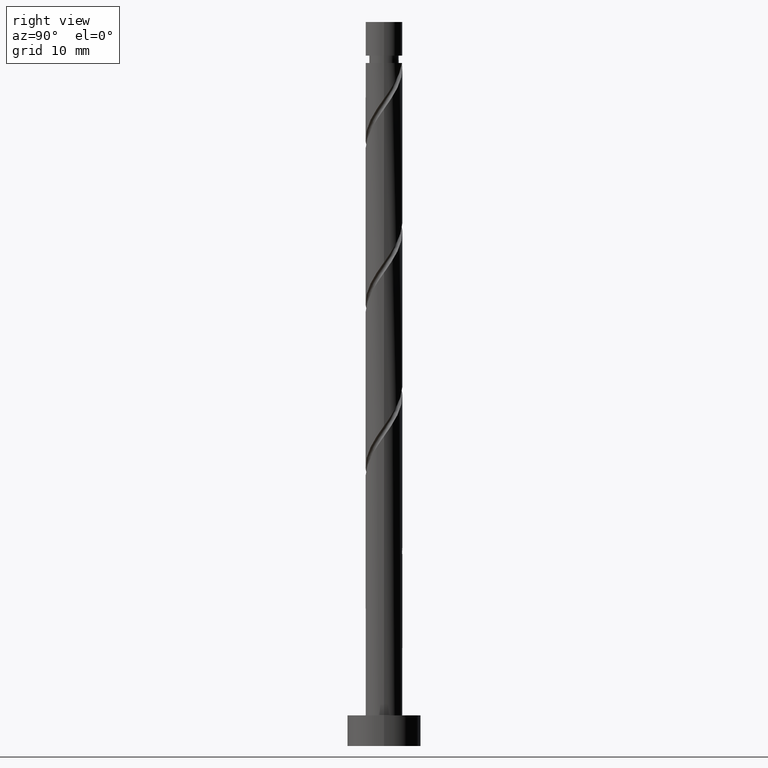
[diagram: clean part render]
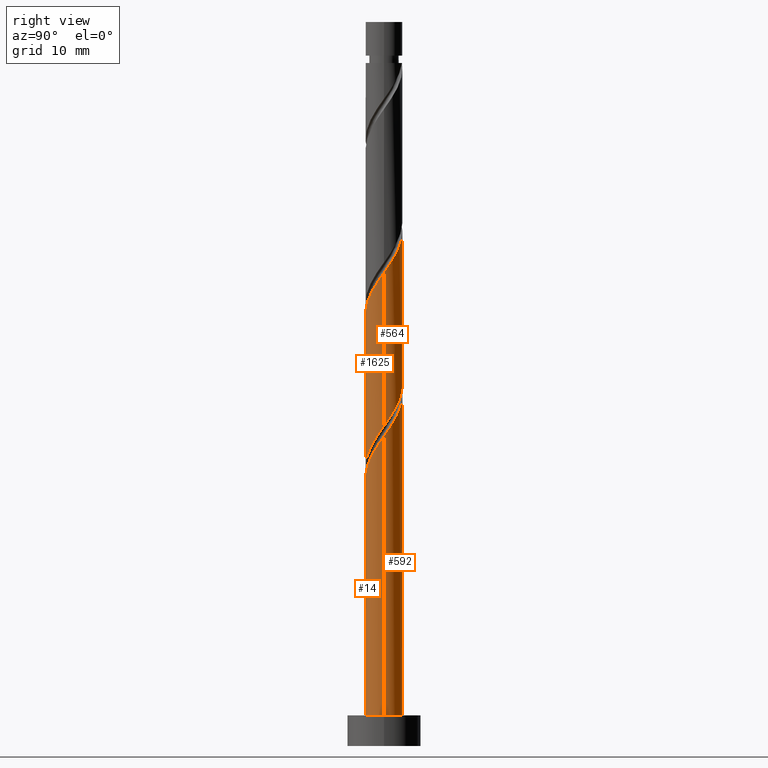
[diagram: same view with one multi-face feature highlighted, each face labeled with its STEP entity id]
A machine part, right view. The highlighted faces form ONE feature: a constant-radius fillet chain: 4 tangent blend faces with common blend radius 3 mm. The faces share edges in the B-rep.
Their STEP definitions:
[1] entity #564 (Cylinder):
#2 = CYLINDRICAL_SURFACE ( 'NONE', #325, 3.000000000000000444 ) ;
#3 = CARTESIAN_POINT ( 'NONE',  ( -3.000000000000000888, 2.243523105524484873E-15, 65.50417177779928579 ) ) ;
#12 = CARTESIAN_POINT ( 'NONE',  ( 1.489272404272453221, 2.639719205955345149, 81.62441426819538037 ) ) ;
#15 = CARTESIAN_POINT ( 'NONE',  ( 3.000000000000000888, -2.871709575071340591E-15, 52.17083844446595009 ) ) ;
#17 = CARTESIAN_POINT ( 'NONE',  ( -2.999999999999999112, 0.08632657957147266137, 65.38207377308104640 ) ) ;
#25 = CARTESIAN_POINT ( 'NONE',  ( 2.922317697815699944, 0.6782766935647610573, 53.13956578334689596 ) ) ;
#30 = CARTESIAN_POINT ( 'NONE',  ( 1.830956826603534982, 2.376467357047839624, 81.01835366213481393 ) ) ;
#143 = CARTESIAN_POINT ( 'NONE',  ( -0.2554836442707042465, 2.989101555235311292, 59.20017184395295118 ) ) ;
#163 = CARTESIAN_POINT ( 'NONE',  ( -3.000000000000005329, 0.3435867821553680868, 89.98596953289286660 ) ) ;
#165 = VERTEX_POINT ( 'NONE', #3 ) ;
#172 = ORIENTED_EDGE ( 'NONE', *, *, #1236, .F. ) ;
#198 = EDGE_CURVE ( 'NONE', #457, #1049, #836, .T. ) ;
#257 = CARTESIAN_POINT ( 'NONE',  ( 0.000000000000000000, 0.000000000000000000, 118.0000000000000142 ) ) ;
#258 = CARTESIAN_POINT ( 'NONE',  ( 2.995035924847414321, 0.1725103152667142592, 77.38199002577111685 ) ) ;
#268 = CARTESIAN_POINT ( 'NONE',  ( -2.172641248934613412, 2.113215508140330545, 62.23047487425600366 ) ) ;
#275 = CARTESIAN_POINT ( 'NONE',  ( 2.091706021272608851, 2.150526893710449361, 55.56380820758930383 ) ) ;
#286 = CARTESIAN_POINT ( 'NONE',  ( -2.825114153412475737, 1.009321564313631292, 64.04865669243780246 ) ) ;
#292 = CARTESIAN_POINT ( 'NONE',  ( -2.824796231958410342, 1.098442546668023878, 88.89714154092261822 ) ) ;
#304 = EDGE_CURVE ( 'NONE', #165, #1235, #322, .T. ) ;
#322 =( BOUNDED_CURVE ( )  B_SPLINE_CURVE ( 2, ( #517, #17, #1033, #927, #286, #1304, #1541, #268, #1550, #1429, #1411, #934, #143, #388, #665, #773, #1181, #810, #275, #380, #1576, #784, #25, #919, #405 ),
 .UNSPECIFIED., .F., .T. ) 
 B_SPLINE_CURVE_WITH_KNOTS ( ( 3, 2, 2, 2, 2, 2, 2, 2, 2, 2, 2, 2, 3 ),
 ( 0.6795252162417514397, 0.6818181818181817677, 0.6931818181818182323, 0.7045454545454545858, 0.7159090909090909394, 0.7272727272727272929, 0.7386363636363636465, 0.7500000000000000000, 0.7613636363636363535, 0.7727272727272727071, 0.7840909090909090606, 0.7954545454545454142, 0.8045252162417513286 ),
 .UNSPECIFIED. ) 
 CURVE ( )  GEOMETRIC_REPRESENTATION_ITEM ( )  RATIONAL_B_SPLINE_CURVE ( ( 0.9061101570135513539, 0.9072237824201334622, 0.9090909090909108370, 0.8998376744372130753, 0.9090909090909108370, 0.8998376744372130753, 0.9090909090909108370, 0.8998376744372130753, 0.9090909090909108370, 0.8998376744372130753, 0.9090909090909108370, 0.8998376744372130753, 0.9090909090909108370, 0.8998376744372130753, 0.9090909090909108370, 0.8998376744372130753, 0.9090909090909108370, 0.8998376744372130753, 0.9090909090909108370, 0.8998376744372130753, 0.9090909090909108370, 0.8998376744372130753, 0.9090909090909108370, 0.9017048011079905612, 0.9061101570135511318 ) ) 
 REPRESENTATION_ITEM ( '' )  );
#325 = AXIS2_PLACEMENT_3D ( 'NONE', #257, #384, #923 ) ;
#378 = CARTESIAN_POINT ( 'NONE',  ( 1.087261985366306805, 2.796043879336900240, 82.23047487425597524 ) ) ;
#380 = CARTESIAN_POINT ( 'NONE',  ( 2.400905109240607072, 1.849784970432860831, 54.95774760152871607 ) ) ;
#384 = DIRECTION ( 'NONE',  ( -0.000000000000000000, -0.000000000000000000, -1.000000000000000000 ) ) ;
#388 = CARTESIAN_POINT ( 'NONE',  ( 0.1742842779187503133, 3.025834557752173026, 58.59411123789234921 ) ) ;
#405 = CARTESIAN_POINT ( 'NONE',  ( 3.000000000000000888, -2.871709575071340591E-15, 52.17083844446595009 ) ) ;
#410 = CARTESIAN_POINT ( 'NONE',  ( -3.000000000000005773, -1.465768428942654663E-15, 90.47192948586418026 ) ) ;
#412 = DIRECTION ( 'NONE',  ( -0.000000000000000000, -0.000000000000000000, -1.000000000000000000 ) ) ;
#421 = ORIENTED_EDGE ( 'NONE', *, *, #1457, .T. ) ;
#457 = VERTEX_POINT ( 'NONE', #488 ) ;
#468 = ORIENTED_EDGE ( 'NONE', *, *, #198, .F. ) ;
#488 = CARTESIAN_POINT ( 'NONE',  ( 3.000000000000005773, 1.376027504721675331E-15, 77.13859615253085167 ) ) ;
#515 = CARTESIAN_POINT ( 'NONE',  ( 2.172641248934617408, 2.113215508140330989, 80.41229305607413380 ) ) ;
#517 = CARTESIAN_POINT ( 'NONE',  ( -3.000000000000000888, 2.243523105524484873E-15, 65.50417177779928579 ) ) ;
#533 = CARTESIAN_POINT ( 'NONE',  ( 2.426318434868872220, 1.764363582886331105, 79.80623245001356736 ) ) ;
#543 = CARTESIAN_POINT ( 'NONE',  ( 0.2554836442707054123, 2.989101555235317065, 83.44259608637720760 ) ) ;
#553 = CARTESIAN_POINT ( 'NONE',  ( -2.091706021272611959, 2.150526893710452470, 87.07895972274081942 ) ) ;
#564 = ADVANCED_FACE ( 'NONE', ( #1186 ), #2, .T. ) ;
#605 = EDGE_LOOP ( 'NONE', ( #468, #421, #1088, #172 ) ) ;
#622 = CARTESIAN_POINT ( 'NONE',  ( 3.000000000000000444, 3.673940397442060361E-16, 118.0000000000000142 ) ) ;
#639 = LINE ( 'NONE', #622, #1434 ) ;
#654 = CARTESIAN_POINT ( 'NONE',  ( 2.679995620803127476, 1.415511657632331444, 79.20017184395294407 ) ) ;
#662 = CARTESIAN_POINT ( 'NONE',  ( 3.000000000000006217, 1.376027504721675331E-15, 77.13859615253085167 ) ) ;
#665 = CARTESIAN_POINT ( 'NONE',  ( 0.5969924622639726230, 2.939999999999999503, 57.98805063183174013 ) ) ;
#683 = CARTESIAN_POINT ( 'NONE',  ( -1.019700646609194683, 2.854165442247831752, 85.26077790455902061 ) ) ;
#773 = CARTESIAN_POINT ( 'NONE',  ( 1.019700646609194239, 2.854165442247829532, 57.38199002577113816 ) ) ;
#784 = CARTESIAN_POINT ( 'NONE',  ( 2.824796231958409454, 1.098442546668020103, 53.74562638940749792 ) ) ;
#810 = CARTESIAN_POINT ( 'NONE',  ( 1.782506933304612184, 2.451268816988038779, 56.16986881364992712 ) ) ;
#814 = CARTESIAN_POINT ( 'NONE',  ( -2.400905109240610180, 1.849784970432863274, 87.68502032880142849 ) ) ;
#836 =( BOUNDED_CURVE ( )  B_SPLINE_CURVE ( 2, ( #662, #1436, #258, #1309, #1179, #654, #533, #515, #30, #12, #378, #914, #543, #940, #1417, #683, #1197, #1170, #553, #814, #1072, #292, #1325, #163, #410 ),
 .UNSPECIFIED., .F., .T. ) 
 B_SPLINE_CURVE_WITH_KNOTS ( ( 3, 2, 2, 2, 2, 2, 2, 2, 2, 2, 2, 2, 3 ),
 ( 0.4295252162417512731, 0.4318181818181817677, 0.4431818181818182323, 0.4545454545454545858, 0.4659090909090909394, 0.4772727272727272929, 0.4886363636363636465, 0.5000000000000000000, 0.5113636363636363535, 0.5227272727272727071, 0.5340909090909091717, 0.5454545454545454142, 0.5545252162417514397 ),
 .UNSPECIFIED. ) 
 CURVE ( )  GEOMETRIC_REPRESENTATION_ITEM ( )  RATIONAL_B_SPLINE_CURVE ( ( 0.9061101570135569050, 0.9072237824201390133, 0.9090909090909164991, 0.8998376744372190705, 0.9090909090909164991, 0.8998376744372190705, 0.9090909090909164991, 0.8998376744372190705, 0.9090909090909164991, 0.8998376744372190705, 0.9090909090909164991, 0.8998376744372190705, 0.9090909090909164991, 0.8998376744372190705, 0.9090909090909164991, 0.8998376744372190705, 0.9090909090909164991, 0.8998376744372190705, 0.9090909090909164991, 0.8998376744372190705, 0.9090909090909164991, 0.8998376744372190705, 0.9090909090909164991, 0.9017048011079964454, 0.9061101570135570160 ) ) 
 REPRESENTATION_ITEM ( '' )  );
#914 = CARTESIAN_POINT ( 'NONE',  ( 0.6852515664601606105, 2.952368552718455774, 82.83653548031655589 ) ) ;
#919 = CARTESIAN_POINT ( 'NONE',  ( 3.000000000000000888, 0.3435867821553666435, 52.65679839743727797 ) ) ;
#923 = DIRECTION ( 'NONE',  ( -1.000000000000000000, 0.000000000000000000, 0.000000000000000000 ) ) ;
#927 = CARTESIAN_POINT ( 'NONE',  ( -2.970232686021826218, 0.6031314709949326947, 64.65471729849841154 ) ) ;
#934 = CARTESIAN_POINT ( 'NONE',  ( -0.6852515664601593892, 2.952368552718452666, 59.80623245001356736 ) ) ;
#940 = CARTESIAN_POINT ( 'NONE',  ( -0.1742842779187495639, 3.025834557752176579, 84.04865669243781667 ) ) ;
#1033 = CARTESIAN_POINT ( 'NONE',  ( -2.995035924847409881, 0.1725103152667151196, 65.26077790455900640 ) ) ;
#1049 = VERTEX_POINT ( 'NONE', #1219 ) ;
#1072 = CARTESIAN_POINT ( 'NONE',  ( -2.612850670599510483, 1.474113758550443576, 88.29108093486205178 ) ) ;
#1075 = LINE ( 'NONE', #1302, #1465 ) ;
#1088 = ORIENTED_EDGE ( 'NONE', *, *, #304, .F. ) ;
#1170 = CARTESIAN_POINT ( 'NONE',  ( -1.782506933304613961, 2.451268816988041888, 86.47289911668021034 ) ) ;
#1179 = CARTESIAN_POINT ( 'NONE',  ( 2.825114153412478846, 1.009321564313631958, 78.59411123789236342 ) ) ;
#1181 = CARTESIAN_POINT ( 'NONE',  ( 1.401103789956902990, 2.652717129617932823, 56.77592941971052909 ) ) ;
#1186 = FACE_OUTER_BOUND ( 'NONE', #605, .T. ) ;
#1197 = CARTESIAN_POINT ( 'NONE',  ( -1.401103789956904544, 2.652717129617936820, 85.86683851061961548 ) ) ;
#1219 = CARTESIAN_POINT ( 'NONE',  ( -3.000000000000005773, -1.465768428942654465E-15, 90.47192948586418026 ) ) ;
#1235 = VERTEX_POINT ( 'NONE', #15 ) ;
#1236 = EDGE_CURVE ( 'NONE', #1049, #165, #1075, .T. ) ;
#1302 = CARTESIAN_POINT ( 'NONE',  ( -3.000000000000000444, 0.000000000000000000, 118.0000000000000142 ) ) ;
#1304 = CARTESIAN_POINT ( 'NONE',  ( -2.679995620803124368, 1.415511657632331444, 63.44259608637720049 ) ) ;
#1309 = CARTESIAN_POINT ( 'NONE',  ( 2.970232686021831547, 0.6031314709949322506, 77.98805063183172592 ) ) ;
#1325 = CARTESIAN_POINT ( 'NONE',  ( -2.922317697815704829, 0.6782766935647640549, 89.50320214698326993 ) ) ;
#1411 = CARTESIAN_POINT ( 'NONE',  ( -1.087261985366304584, 2.796043879336897575, 60.41229305607415512 ) ) ;
#1417 = CARTESIAN_POINT ( 'NONE',  ( -0.5969924622639717349, 2.940000000000005276, 84.65471729849842575 ) ) ;
#1429 = CARTESIAN_POINT ( 'NONE',  ( -1.489272404272451888, 2.639719205955342041, 61.01835366213477130 ) ) ;
#1434 = VECTOR ( 'NONE', #1643, 1000.000000000000000 ) ;
#1436 = CARTESIAN_POINT ( 'NONE',  ( 3.000000000000004885, 0.08632657957146550043, 77.26069415724906264 ) ) ;
#1457 = EDGE_CURVE ( 'NONE', #457, #1235, #639, .T. ) ;
#1465 = VECTOR ( 'NONE', #412, 1000.000000000000000 ) ;
#1541 = CARTESIAN_POINT ( 'NONE',  ( -2.426318434868868668, 1.764363582886330217, 62.83653548031659142 ) ) ;
#1550 = CARTESIAN_POINT ( 'NONE',  ( -1.830956826603531873, 2.376467357047835627, 61.62441426819536616 ) ) ;
#1576 = CARTESIAN_POINT ( 'NONE',  ( 2.612850670599507374, 1.474113758550441355, 54.35168699546809989 ) ) ;
#1643 = DIRECTION ( 'NONE',  ( -0.000000000000000000, -0.000000000000000000, -1.000000000000000000 ) ) ;
[2] entity #1625 (Cylinder):
#5 = CARTESIAN_POINT ( 'NONE',  ( -0.1742842779187510904, -3.025834557752173470, 45.26077790455902061 ) ) ;
#15 = CARTESIAN_POINT ( 'NONE',  ( 3.000000000000000888, -2.871709575071340591E-15, 52.17083844446595009 ) ) ;
#87 = CARTESIAN_POINT ( 'NONE',  ( 2.824796231958411674, -1.098442546668023212, 75.56380820758931804 ) ) ;
#115 = CARTESIAN_POINT ( 'NONE',  ( 0.5969924622639720679, -2.940000000000005276, 71.32138396516508294 ) ) ;
#150 = CARTESIAN_POINT ( 'NONE',  ( 0.6852515664601597223, -2.952368552718452221, 46.47289911668021745 ) ) ;
#167 = DIRECTION ( 'NONE',  ( -0.000000000000000000, -0.000000000000000000, -1.000000000000000000 ) ) ;
#188 = VECTOR ( 'NONE', #1385, 1000.000000000000000 ) ;
#200 = EDGE_LOOP ( 'NONE', ( #1606, #974, #990, #1638 ) ) ;
#207 =( BOUNDED_CURVE ( )  B_SPLINE_CURVE ( 2, ( #340, #638, #872, #1379, #221, #746, #1250, #1662, #793, #372, #253, #150, #1447, #5, #1042, #943, #1164, #510, #907, #1311, #1558, #1319, #1189, #546, #685 ),
 .UNSPECIFIED., .F., .T. ) 
 B_SPLINE_CURVE_WITH_KNOTS ( ( 3, 2, 2, 2, 2, 2, 2, 2, 2, 2, 2, 2, 3 ),
 ( 0.8045252162417513286, 0.8068181818181817677, 0.8181818181818182323, 0.8295454545454545858, 0.8409090909090909394, 0.8522727272727272929, 0.8636363636363636465, 0.8750000000000000000, 0.8863636363636363535, 0.8977272727272727071, 0.9090909090909090606, 0.9204545454545454142, 0.9295252162417513286 ),
 .UNSPECIFIED. ) 
 CURVE ( )  GEOMETRIC_REPRESENTATION_ITEM ( )  RATIONAL_B_SPLINE_CURVE ( ( 0.9061101570135511318, 0.9072237824201333511, 0.9090909090909108370, 0.8998376744372130753, 0.9090909090909108370, 0.8998376744372130753, 0.9090909090909108370, 0.8998376744372130753, 0.9090909090909108370, 0.8998376744372130753, 0.9090909090909108370, 0.8998376744372130753, 0.9090909090909108370, 0.8998376744372130753, 0.9090909090909108370, 0.8998376744372130753, 0.9090909090909108370, 0.8998376744372130753, 0.9090909090909108370, 0.8998376744372130753, 0.9090909090909108370, 0.8998376744372130753, 0.9090909090909108370, 0.9017048011079905612, 0.9061101570135511318 ) ) 
 REPRESENTATION_ITEM ( '' )  );
#221 = CARTESIAN_POINT ( 'NONE',  ( 2.825114153412475737, -1.009321564313631292, 50.71532335910445966 ) ) ;
#225 = EDGE_CURVE ( 'NONE', #1128, #457, #1295, .T. ) ;
#253 = CARTESIAN_POINT ( 'NONE',  ( 1.087261985366304584, -2.796043879336897575, 47.07895972274083363 ) ) ;
#281 = EDGE_CURVE ( 'NONE', #1235, #725, #207, .T. ) ;
#288 = DIRECTION ( 'NONE',  ( -1.000000000000000000, 0.000000000000000000, 0.000000000000000000 ) ) ;
#332 = CARTESIAN_POINT ( 'NONE',  ( -2.426318434868872220, -1.764363582886332660, 66.47289911668022455 ) ) ;
#340 = CARTESIAN_POINT ( 'NONE',  ( 3.000000000000000888, -2.871709575071340591E-15, 52.17083844446595009 ) ) ;
#365 = CARTESIAN_POINT ( 'NONE',  ( -0.6852515664601603884, -2.952368552718455774, 69.50320214698322729 ) ) ;
#372 = CARTESIAN_POINT ( 'NONE',  ( 1.489272404272451222, -2.639719205955342929, 47.68502032880144270 ) ) ;
#377 = CARTESIAN_POINT ( 'NONE',  ( -3.000000000000000888, 2.243523105524484873E-15, 38.83750511113262149 ) ) ;
#457 = VERTEX_POINT ( 'NONE', #488 ) ;
#459 = CARTESIAN_POINT ( 'NONE',  ( 2.922317697815704829, -0.6782766935647637219, 76.16986881364994133 ) ) ;
#470 = CARTESIAN_POINT ( 'NONE',  ( -1.087261985366307693, -2.796043879336900240, 68.89714154092261822 ) ) ;
#488 = CARTESIAN_POINT ( 'NONE',  ( 3.000000000000005773, 1.376027504721675331E-15, 77.13859615253085167 ) ) ;
#510 = CARTESIAN_POINT ( 'NONE',  ( -1.782506933304611962, -2.451268816988039223, 42.83653548031659142 ) ) ;
#546 = CARTESIAN_POINT ( 'NONE',  ( -3.000000000000000444, -0.3435867821553678092, 39.32346506410392095 ) ) ;
#594 = LINE ( 'NONE', #1143, #188 ) ;
#607 = CARTESIAN_POINT ( 'NONE',  ( 3.000000000000006217, 1.376027504721675331E-15, 77.13859615253085167 ) ) ;
#621 = CARTESIAN_POINT ( 'NONE',  ( -2.172641248934616520, -2.113215508140332766, 67.07895972274083363 ) ) ;
#622 = CARTESIAN_POINT ( 'NONE',  ( 3.000000000000000444, 3.673940397442060361E-16, 118.0000000000000142 ) ) ;
#638 = CARTESIAN_POINT ( 'NONE',  ( 3.000000000000000000, -0.08632657957146896988, 52.04874043974773201 ) ) ;
#639 = LINE ( 'NONE', #622, #1434 ) ;
#685 = CARTESIAN_POINT ( 'NONE',  ( -3.000000000000000888, 2.243523105524484873E-15, 38.83750511113262149 ) ) ;
#725 = VERTEX_POINT ( 'NONE', #377 ) ;
#734 = CARTESIAN_POINT ( 'NONE',  ( 1.401103789956903656, -2.652717129617937264, 72.53350517728630109 ) ) ;
#746 = CARTESIAN_POINT ( 'NONE',  ( 2.679995620803124368, -1.415511657632331222, 50.10926275304385769 ) ) ;
#793 = CARTESIAN_POINT ( 'NONE',  ( 1.830956826603531873, -2.376467357047836071, 48.29108093486203046 ) ) ;
#803 = FACE_OUTER_BOUND ( 'NONE', #200, .T. ) ;
#872 = CARTESIAN_POINT ( 'NONE',  ( 2.995035924847409881, -0.1725103152667154527, 51.92744457122566359 ) ) ;
#880 = CARTESIAN_POINT ( 'NONE',  ( -2.825114153412478846, -1.009321564313632402, 65.26077790455902061 ) ) ;
#889 = CARTESIAN_POINT ( 'NONE',  ( 2.091706021272611959, -2.150526893710452470, 73.74562638940747661 ) ) ;
#907 = CARTESIAN_POINT ( 'NONE',  ( -2.091706021272610183, -2.150526893710449361, 42.23047487425597524 ) ) ;
#943 = CARTESIAN_POINT ( 'NONE',  ( -1.019700646609193795, -2.854165442247829532, 44.04865669243781667 ) ) ;
#974 = ORIENTED_EDGE ( 'NONE', *, *, #225, .F. ) ;
#990 = ORIENTED_EDGE ( 'NONE', *, *, #1195, .T. ) ;
#1011 = CARTESIAN_POINT ( 'NONE',  ( -2.679995620803127476, -1.415511657632332110, 65.86683851061961548 ) ) ;
#1018 = CARTESIAN_POINT ( 'NONE',  ( 0.1742842779187500080, -3.025834557752176579, 70.71532335910447387 ) ) ;
#1042 = CARTESIAN_POINT ( 'NONE',  ( -0.5969924622639721790, -2.939999999999999503, 44.65471729849839022 ) ) ;
#1128 = VERTEX_POINT ( 'NONE', #1227 ) ;
#1139 = CARTESIAN_POINT ( 'NONE',  ( 1.782506933304613961, -2.451268816988041443, 73.13956578334686753 ) ) ;
#1143 = CARTESIAN_POINT ( 'NONE',  ( -3.000000000000000444, 0.000000000000000000, 118.0000000000000142 ) ) ;
#1149 = CARTESIAN_POINT ( 'NONE',  ( -0.2554836442707050792, -2.989101555235317065, 70.10926275304385058 ) ) ;
#1164 = CARTESIAN_POINT ( 'NONE',  ( -1.401103789956902768, -2.652717129617932823, 43.44259608637720760 ) ) ;
#1189 = CARTESIAN_POINT ( 'NONE',  ( -2.922317697815699944, -0.6782766935647622786, 39.80623245001355315 ) ) ;
#1195 = EDGE_CURVE ( 'NONE', #1128, #725, #594, .T. ) ;
#1227 = CARTESIAN_POINT ( 'NONE',  ( -3.000000000000005773, -1.465768428942654465E-15, 63.80526281919753018 ) ) ;
#1235 = VERTEX_POINT ( 'NONE', #15 ) ;
#1243 = CARTESIAN_POINT ( 'NONE',  ( 2.400905109240610180, -1.849784970432863496, 74.35168699546808568 ) ) ;
#1250 = CARTESIAN_POINT ( 'NONE',  ( 2.426318434868868668, -1.764363582886330217, 49.50320214698324861 ) ) ;
#1258 = CARTESIAN_POINT ( 'NONE',  ( -2.970232686021831547, -0.6031314709949324726, 64.65471729849839733 ) ) ;
#1266 = CARTESIAN_POINT ( 'NONE',  ( -1.489272404272454553, -2.639719205955344261, 68.29108093486203757 ) ) ;
#1274 = CARTESIAN_POINT ( 'NONE',  ( -1.830956826603535204, -2.376467357047839180, 67.68502032880144270 ) ) ;
#1295 =( BOUNDED_CURVE ( )  B_SPLINE_CURVE ( 2, ( #1390, #1371, #1396, #1258, #880, #1011, #332, #621, #1274, #1266, #470, #365, #1149, #1018, #115, #1651, #734, #1139, #889, #1243, #1518, #87, #459, #1526, #607 ),
 .UNSPECIFIED., .F., .T. ) 
 B_SPLINE_CURVE_WITH_KNOTS ( ( 3, 2, 2, 2, 2, 2, 2, 2, 2, 2, 2, 2, 3 ),
 ( 0.3045252162417513286, 0.3068181818181817677, 0.3181818181818182323, 0.3295454545454545858, 0.3409090909090909394, 0.3522727272727272929, 0.3636363636363636465, 0.3750000000000000000, 0.3863636363636363535, 0.3977272727272727071, 0.4090909090909090606, 0.4204545454545454142, 0.4295252162417512731 ),
 .UNSPECIFIED. ) 
 CURVE ( )  GEOMETRIC_REPRESENTATION_ITEM ( )  RATIONAL_B_SPLINE_CURVE ( ( 0.9061101570135570160, 0.9072237824201391243, 0.9090909090909164991, 0.8998376744372190705, 0.9090909090909164991, 0.8998376744372190705, 0.9090909090909164991, 0.8998376744372190705, 0.9090909090909164991, 0.8998376744372190705, 0.9090909090909164991, 0.8998376744372190705, 0.9090909090909164991, 0.8998376744372190705, 0.9090909090909164991, 0.8998376744372190705, 0.9090909090909164991, 0.8998376744372190705, 0.9090909090909164991, 0.8998376744372190705, 0.9090909090909164991, 0.8998376744372190705, 0.9090909090909164991, 0.9017048011079964454, 0.9061101570135569050 ) ) 
 REPRESENTATION_ITEM ( '' )  );
#1311 = CARTESIAN_POINT ( 'NONE',  ( -2.400905109240607516, -1.849784970432859721, 41.62441426819536616 ) ) ;
#1313 = CARTESIAN_POINT ( 'NONE',  ( 0.000000000000000000, 0.000000000000000000, 118.0000000000000142 ) ) ;
#1319 = CARTESIAN_POINT ( 'NONE',  ( -2.824796231958407677, -1.098442546668021880, 40.41229305607416933 ) ) ;
#1326 = AXIS2_PLACEMENT_3D ( 'NONE', #1313, #167, #288 ) ;
#1371 = CARTESIAN_POINT ( 'NONE',  ( -3.000000000000004441, -0.08632657957146777639, 63.92736082391573404 ) ) ;
#1379 = CARTESIAN_POINT ( 'NONE',  ( 2.970232686021826218, -0.6031314709949331387, 51.32138396516507584 ) ) ;
#1385 = DIRECTION ( 'NONE',  ( -0.000000000000000000, -0.000000000000000000, -1.000000000000000000 ) ) ;
#1390 = CARTESIAN_POINT ( 'NONE',  ( -3.000000000000005773, -1.465768428942654663E-15, 63.80526281919753018 ) ) ;
#1396 = CARTESIAN_POINT ( 'NONE',  ( -2.995035924847414321, -0.1725103152667145368, 64.04865669243781667 ) ) ;
#1434 = VECTOR ( 'NONE', #1643, 1000.000000000000000 ) ;
#1447 = CARTESIAN_POINT ( 'NONE',  ( 0.2554836442707034139, -2.989101555235311292, 45.86683851061960837 ) ) ;
#1457 = EDGE_CURVE ( 'NONE', #457, #1235, #639, .T. ) ;
#1518 = CARTESIAN_POINT ( 'NONE',  ( 2.612850670599510483, -1.474113758550444242, 74.95774760152872318 ) ) ;
#1526 = CARTESIAN_POINT ( 'NONE',  ( 3.000000000000004885, -0.3435867821553707513, 76.65263619955956642 ) ) ;
#1552 = CYLINDRICAL_SURFACE ( 'NONE', #1326, 3.000000000000000444 ) ;
#1558 = CARTESIAN_POINT ( 'NONE',  ( -2.612850670599507374, -1.474113758550440689, 41.01835366213477130 ) ) ;
#1606 = ORIENTED_EDGE ( 'NONE', *, *, #1457, .F. ) ;
#1625 = ADVANCED_FACE ( 'NONE', ( #803 ), #1552, .T. ) ;
#1638 = ORIENTED_EDGE ( 'NONE', *, *, #281, .F. ) ;
#1643 = DIRECTION ( 'NONE',  ( -0.000000000000000000, -0.000000000000000000, -1.000000000000000000 ) ) ;
#1651 = CARTESIAN_POINT ( 'NONE',  ( 1.019700646609194017, -2.854165442247832196, 71.92744457122567781 ) ) ;
#1662 = CARTESIAN_POINT ( 'NONE',  ( 2.172641248934613412, -2.113215508140329657, 48.89714154092266085 ) ) ;
[3] entity #592 (Cylinder):
#29 = DIRECTION ( 'NONE',  ( -1.000000000000000000, 0.000000000000000000, 0.000000000000000000 ) ) ;
#36 = AXIS2_PLACEMENT_3D ( 'NONE', #1426, #1048, #1555 ) ;
#38 = CARTESIAN_POINT ( 'NONE',  ( -0.5969924622639717349, 2.940000000000005276, 31.32138396516506873 ) ) ;
#78 = EDGE_LOOP ( 'NONE', ( #1182, #1538, #1352, #121, #147, #1001, #1388, #1591 ) ) ;
#82 = EDGE_CURVE ( 'NONE', #762, #501, #424, .T. ) ;
#94 = CARTESIAN_POINT ( 'NONE',  ( 2.825114153412478846, 1.009321564313631958, 51.92744457122567781 ) ) ;
#101 = CARTESIAN_POINT ( 'NONE',  ( -1.019700646609194683, 2.854165442247831752, 58.59411123789233500 ) ) ;
#107 = CARTESIAN_POINT ( 'NONE',  ( -2.091706021272611959, 2.150526893710452470, 60.41229305607416222 ) ) ;
#111 = DIRECTION ( 'NONE',  ( 0.000000000000000000, -0.000000000000000000, -1.000000000000000000 ) ) ;
#121 = ORIENTED_EDGE ( 'NONE', *, *, #707, .F. ) ;
#129 = LINE ( 'NONE', #1053, #1406 ) ;
#130 = CARTESIAN_POINT ( 'NONE',  ( -2.400905109240610180, 1.849784970432863274, 34.35168699546809279 ) ) ;
#133 = CARTESIAN_POINT ( 'NONE',  ( 0.000000000000000000, 0.000000000000000000, 5.000000000000000000 ) ) ;
#147 = ORIENTED_EDGE ( 'NONE', *, *, #82, .F. ) ;
#174 = CARTESIAN_POINT ( 'NONE',  ( 0.5969924622639726230, 2.939999999999999503, 31.32138396516506873 ) ) ;
#188 = VECTOR ( 'NONE', #1385, 1000.000000000000000 ) ;
#189 = VERTEX_POINT ( 'NONE', #932 ) ;
#199 = CARTESIAN_POINT ( 'NONE',  ( -3.000000000000000444, 0.000000000000000000, 5.000000000000000000 ) ) ;
#213 = CARTESIAN_POINT ( 'NONE',  ( -0.1742842779187495639, 3.025834557752176579, 57.38199002577113816 ) ) ;
#215 = EDGE_CURVE ( 'NONE', #317, #1128, #785, .T. ) ;
#222 = CIRCLE ( 'NONE', #986, 3.000000000000000444 ) ;
#233 = CARTESIAN_POINT ( 'NONE',  ( -2.922317697815704829, 0.6782766935647640549, 62.83653548031659142 ) ) ;
#250 = CARTESIAN_POINT ( 'NONE',  ( -3.000000000000005773, -1.465768428942654465E-15, 37.13859615253085877 ) ) ;
#283 = CARTESIAN_POINT ( 'NONE',  ( -2.091706021272611959, 2.150526893710452470, 33.74562638940749082 ) ) ;
#317 = VERTEX_POINT ( 'NONE', #536 ) ;
#361 = EDGE_CURVE ( 'NONE', #189, #430, #744, .T. ) ;
#377 = CARTESIAN_POINT ( 'NONE',  ( -3.000000000000000888, 2.243523105524484873E-15, 38.83750511113262149 ) ) ;
#385 = CARTESIAN_POINT ( 'NONE',  ( -3.000000000000005773, -1.465768428942654663E-15, 37.13859615253085877 ) ) ;
#393 = CARTESIAN_POINT ( 'NONE',  ( -2.922317697815704829, 0.6782766935647640549, 36.16986881364992001 ) ) ;
#398 = CARTESIAN_POINT ( 'NONE',  ( -2.995035924847409881, 0.1725103152667151196, 38.59411123789233500 ) ) ;
#414 = CARTESIAN_POINT ( 'NONE',  ( -1.489272404272451888, 2.639719205955342041, 34.35168699546811411 ) ) ;
#423 = CARTESIAN_POINT ( 'NONE',  ( -0.6852515664601593892, 2.952368552718452666, 33.13956578334688885 ) ) ;
#424 =( BOUNDED_CURVE ( )  B_SPLINE_CURVE ( 2, ( #38, #1054, #904, #1187, #283, #130, #781, #1162, #393, #807, #385 ),
 .UNSPECIFIED., .F., .T. ) 
 B_SPLINE_CURVE_WITH_KNOTS ( ( 3, 2, 2, 2, 2, 3 ),
 ( 0.000000000000000000, 0.01136363636363635354, 0.02272727272727270709, 0.03409090909090906063, 0.04545454545454541417, 0.05452521624175137721 ),
 .UNSPECIFIED. ) 
 CURVE ( )  GEOMETRIC_REPRESENTATION_ITEM ( )  RATIONAL_B_SPLINE_CURVE ( ( 0.9090909090909164991, 0.8998376744372190705, 0.9090909090909164991, 0.8998376744372190705, 0.9090909090909164991, 0.8998376744372190705, 0.9090909090909164991, 0.8998376744372190705, 0.9090909090909164991, 0.9017048011079964454, 0.9061101570135570160 ) ) 
 REPRESENTATION_ITEM ( '' )  );
#430 = VERTEX_POINT ( 'NONE', #199 ) ;
#438 = DIRECTION ( 'NONE',  ( 1.000000000000000000, 0.000000000000000000, 0.000000000000000000 ) ) ;
#479 = CARTESIAN_POINT ( 'NONE',  ( -2.612850670599510483, 1.474113758550443576, 61.62441426819537327 ) ) ;
#493 = CARTESIAN_POINT ( 'NONE',  ( 1.830956826603534982, 2.376467357047839624, 54.35168699546809989 ) ) ;
#501 = VERTEX_POINT ( 'NONE', #250 ) ;
#503 = CARTESIAN_POINT ( 'NONE',  ( -3.000000000000005329, 0.3435867821553689194, 63.31930286622620230 ) ) ;
#507 = CARTESIAN_POINT ( 'NONE',  ( -0.5969924622639717349, 2.940000000000005720, 31.32138396516506873 ) ) ;
#536 = CARTESIAN_POINT ( 'NONE',  ( 3.000000000000005773, 1.376027504721675331E-15, 50.47192948586419448 ) ) ;
#539 = EDGE_CURVE ( 'NONE', #317, #189, #780, .T. ) ;
#567 = CARTESIAN_POINT ( 'NONE',  ( -1.087261985366304584, 2.796043879336897575, 33.74562638940749082 ) ) ;
#574 = CARTESIAN_POINT ( 'NONE',  ( 0.1742842779187503133, 3.025834557752173026, 31.92744457122568491 ) ) ;
#592 = ADVANCED_FACE ( 'NONE', ( #1435 ), #653, .T. ) ;
#594 = LINE ( 'NONE', #1143, #188 ) ;
#613 = CARTESIAN_POINT ( 'NONE',  ( -1.401103789956904544, 2.652717129617936820, 59.20017184395294407 ) ) ;
#630 = CARTESIAN_POINT ( 'NONE',  ( 0.6852515664601606105, 2.952368552718455774, 56.16986881364991291 ) ) ;
#653 = CYLINDRICAL_SURFACE ( 'NONE', #36, 3.000000000000000444 ) ;
#707 = EDGE_CURVE ( 'NONE', #501, #430, #129, .T. ) ;
#725 = VERTEX_POINT ( 'NONE', #377 ) ;
#735 = EDGE_CURVE ( 'NONE', #762, #1506, #222, .T. ) ;
#744 = CIRCLE ( 'NONE', #1146, 3.000000000000000444 ) ;
#752 = CARTESIAN_POINT ( 'NONE',  ( -3.000000000000005773, -1.465768428942654663E-15, 63.80526281919753018 ) ) ;
#757 = CARTESIAN_POINT ( 'NONE',  ( 1.489272404272453221, 2.639719205955345149, 54.95774760152869476 ) ) ;
#762 = VERTEX_POINT ( 'NONE', #507 ) ;
#765 = CARTESIAN_POINT ( 'NONE',  ( -2.400905109240610180, 1.849784970432863274, 61.01835366213477130 ) ) ;
#780 = LINE ( 'NONE', #939, #1114 ) ;
#781 = CARTESIAN_POINT ( 'NONE',  ( -2.612850670599510483, 1.474113758550443576, 34.95774760152871607 ) ) ;
#785 =( BOUNDED_CURVE ( )  B_SPLINE_CURVE ( 2, ( #1206, #1584, #949, #1454, #94, #861, #1641, #1633, #493, #757, #1157, #630, #1402, #213, #1131, #101, #613, #1122, #107, #765, #479, #1498, #233, #503, #752 ),
 .UNSPECIFIED., .F., .T. ) 
 B_SPLINE_CURVE_WITH_KNOTS ( ( 3, 2, 2, 2, 2, 2, 2, 2, 2, 2, 2, 2, 3 ),
 ( 0.1795252162417513286, 0.1818181818181817677, 0.1931818181818182323, 0.2045454545454545858, 0.2159090909090909394, 0.2272727272727272929, 0.2386363636363636465, 0.2500000000000000000, 0.2613636363636363535, 0.2727272727272727071, 0.2840909090909090606, 0.2954545454545454142, 0.3045252162417513286 ),
 .UNSPECIFIED. ) 
 CURVE ( )  GEOMETRIC_REPRESENTATION_ITEM ( )  RATIONAL_B_SPLINE_CURVE ( ( 0.9061101570135570160, 0.9072237824201391243, 0.9090909090909164991, 0.8998376744372190705, 0.9090909090909164991, 0.8998376744372190705, 0.9090909090909164991, 0.8998376744372190705, 0.9090909090909164991, 0.8998376744372190705, 0.9090909090909164991, 0.8998376744372190705, 0.9090909090909164991, 0.8998376744372190705, 0.9090909090909164991, 0.8998376744372190705, 0.9090909090909164991, 0.8998376744372190705, 0.9090909090909164991, 0.8998376744372190705, 0.9090909090909164991, 0.8998376744372190705, 0.9090909090909164991, 0.9017048011079964454, 0.9061101570135570160 ) ) 
 REPRESENTATION_ITEM ( '' )  );
#807 = CARTESIAN_POINT ( 'NONE',  ( -3.000000000000007105, 0.3435867821553670320, 36.65263619955954510 ) ) ;
#850 = DIRECTION ( 'NONE',  ( 0.000000000000000000, 0.000000000000000000, 1.000000000000000000 ) ) ;
#861 = CARTESIAN_POINT ( 'NONE',  ( 2.679995620803127476, 1.415511657632331444, 52.53350517728628688 ) ) ;
#904 = CARTESIAN_POINT ( 'NONE',  ( -1.401103789956904544, 2.652717129617936820, 32.53350517728628688 ) ) ;
#932 = CARTESIAN_POINT ( 'NONE',  ( 3.000000000000000444, 3.673940397442060361E-16, 5.000000000000000000 ) ) ;
#939 = CARTESIAN_POINT ( 'NONE',  ( 3.000000000000000444, 3.673940397442060361E-16, 118.0000000000000142 ) ) ;
#945 = CARTESIAN_POINT ( 'NONE',  ( -2.172641248934613412, 2.113215508140330545, 35.56380820758930383 ) ) ;
#949 = CARTESIAN_POINT ( 'NONE',  ( 2.995035924847414321, 0.1725103152667142592, 50.71532335910447387 ) ) ;
#952 = CARTESIAN_POINT ( 'NONE',  ( -3.000000000000000000, 0.08632657957146845640, 38.71540710641439631 ) ) ;
#959 = CARTESIAN_POINT ( 'NONE',  ( -0.2554836442707042465, 2.989101555235311292, 32.53350517728628688 ) ) ;
#986 = AXIS2_PLACEMENT_3D ( 'NONE', #1563, #111, #29 ) ;
#1001 = ORIENTED_EDGE ( 'NONE', *, *, #735, .T. ) ;
#1048 = DIRECTION ( 'NONE',  ( -0.000000000000000000, -0.000000000000000000, -1.000000000000000000 ) ) ;
#1053 = CARTESIAN_POINT ( 'NONE',  ( -3.000000000000000444, 0.000000000000000000, 118.0000000000000142 ) ) ;
#1054 = CARTESIAN_POINT ( 'NONE',  ( -1.019700646609194683, 2.854165442247831752, 31.92744457122567781 ) ) ;
#1067 = CARTESIAN_POINT ( 'NONE',  ( -2.679995620803124368, 1.415511657632331444, 36.77592941971054330 ) ) ;
#1114 = VECTOR ( 'NONE', #1308, 1000.000000000000000 ) ;
#1122 = CARTESIAN_POINT ( 'NONE',  ( -1.782506933304613961, 2.451268816988041888, 59.80623245001353183 ) ) ;
#1128 = VERTEX_POINT ( 'NONE', #1227 ) ;
#1131 = CARTESIAN_POINT ( 'NONE',  ( -0.5969924622639717349, 2.940000000000005276, 57.98805063183173303 ) ) ;
#1143 = CARTESIAN_POINT ( 'NONE',  ( -3.000000000000000444, 0.000000000000000000, 118.0000000000000142 ) ) ;
#1146 = AXIS2_PLACEMENT_3D ( 'NONE', #133, #850, #438 ) ;
#1157 = CARTESIAN_POINT ( 'NONE',  ( 1.087261985366306805, 2.796043879336900240, 55.56380820758932515 ) ) ;
#1162 = CARTESIAN_POINT ( 'NONE',  ( -2.824796231958410342, 1.098442546668023878, 35.56380820758931094 ) ) ;
#1165 =( BOUNDED_CURVE ( )  B_SPLINE_CURVE ( 2, ( #1567, #952, #398, #1192, #1321, #1067, #1578, #945, #1450, #414, #567, #423, #959, #574, #174 ),
 .UNSPECIFIED., .F., .T. ) 
 B_SPLINE_CURVE_WITH_KNOTS ( ( 3, 2, 2, 2, 2, 2, 2, 3 ),
 ( 0.9295252162417513286, 0.9318181818181817677, 0.9431818181818182323, 0.9545454545454545858, 0.9659090909090909394, 0.9772727272727272929, 0.9886363636363636465, 1.000000000000000000 ),
 .UNSPECIFIED. ) 
 CURVE ( )  GEOMETRIC_REPRESENTATION_ITEM ( )  RATIONAL_B_SPLINE_CURVE ( ( 0.9061101570135511318, 0.9072237824201333511, 0.9090909090909108370, 0.8998376744372130753, 0.9090909090909108370, 0.8998376744372130753, 0.9090909090909108370, 0.8998376744372130753, 0.9090909090909108370, 0.8998376744372130753, 0.9090909090909108370, 0.8998376744372130753, 0.9090909090909108370, 0.8998376744372130753, 0.9090909090909108370 ) ) 
 REPRESENTATION_ITEM ( '' )  );
#1169 = DIRECTION ( 'NONE',  ( -0.000000000000000000, -0.000000000000000000, -1.000000000000000000 ) ) ;
#1182 = ORIENTED_EDGE ( 'NONE', *, *, #215, .F. ) ;
#1187 = CARTESIAN_POINT ( 'NONE',  ( -1.782506933304613961, 2.451268816988041888, 33.13956578334688174 ) ) ;
#1192 = CARTESIAN_POINT ( 'NONE',  ( -2.970232686021826218, 0.6031314709949326947, 37.98805063183174724 ) ) ;
#1195 = EDGE_CURVE ( 'NONE', #1128, #725, #594, .T. ) ;
#1206 = CARTESIAN_POINT ( 'NONE',  ( 3.000000000000005773, 1.376027504721675331E-15, 50.47192948586419448 ) ) ;
#1227 = CARTESIAN_POINT ( 'NONE',  ( -3.000000000000005773, -1.465768428942654465E-15, 63.80526281919753018 ) ) ;
#1230 = CARTESIAN_POINT ( 'NONE',  ( 0.5969924622639726230, 2.939999999999999503, 31.32138396516506873 ) ) ;
#1308 = DIRECTION ( 'NONE',  ( -0.000000000000000000, -0.000000000000000000, -1.000000000000000000 ) ) ;
#1321 = CARTESIAN_POINT ( 'NONE',  ( -2.825114153412475737, 1.009321564313631292, 37.38199002577111685 ) ) ;
#1334 = EDGE_CURVE ( 'NONE', #725, #1506, #1165, .T. ) ;
#1352 = ORIENTED_EDGE ( 'NONE', *, *, #361, .T. ) ;
#1385 = DIRECTION ( 'NONE',  ( -0.000000000000000000, -0.000000000000000000, -1.000000000000000000 ) ) ;
#1388 = ORIENTED_EDGE ( 'NONE', *, *, #1334, .F. ) ;
#1402 = CARTESIAN_POINT ( 'NONE',  ( 0.2554836442707054123, 2.989101555235317065, 56.77592941971053619 ) ) ;
#1406 = VECTOR ( 'NONE', #1169, 1000.000000000000000 ) ;
#1426 = CARTESIAN_POINT ( 'NONE',  ( 0.000000000000000000, 0.000000000000000000, 118.0000000000000142 ) ) ;
#1435 = FACE_OUTER_BOUND ( 'NONE', #78, .T. ) ;
#1450 = CARTESIAN_POINT ( 'NONE',  ( -1.830956826603531873, 2.376467357047835627, 34.95774760152869476 ) ) ;
#1454 = CARTESIAN_POINT ( 'NONE',  ( 2.970232686021831547, 0.6031314709949322506, 51.32138396516506162 ) ) ;
#1498 = CARTESIAN_POINT ( 'NONE',  ( -2.824796231958410342, 1.098442546668023878, 62.23047487425598234 ) ) ;
#1506 = VERTEX_POINT ( 'NONE', #1230 ) ;
#1538 = ORIENTED_EDGE ( 'NONE', *, *, #539, .T. ) ;
#1555 = DIRECTION ( 'NONE',  ( -1.000000000000000000, 0.000000000000000000, 0.000000000000000000 ) ) ;
#1563 = CARTESIAN_POINT ( 'NONE',  ( 0.000000000000000000, 0.000000000000000000, 31.32138396516506873 ) ) ;
#1567 = CARTESIAN_POINT ( 'NONE',  ( -3.000000000000000888, 2.243523105524484873E-15, 38.83750511113262149 ) ) ;
#1578 = CARTESIAN_POINT ( 'NONE',  ( -2.426318434868868668, 1.764363582886330217, 36.16986881364992001 ) ) ;
#1584 = CARTESIAN_POINT ( 'NONE',  ( 3.000000000000004441, 0.08632657957146755434, 50.59402749058239834 ) ) ;
#1591 = ORIENTED_EDGE ( 'NONE', *, *, #1195, .F. ) ;
#1633 = CARTESIAN_POINT ( 'NONE',  ( 2.172641248934617408, 2.113215508140330989, 53.74562638940749082 ) ) ;
#1641 = CARTESIAN_POINT ( 'NONE',  ( 2.426318434868872220, 1.764363582886331105, 53.13956578334689596 ) ) ;
[4] entity #14 (Cylinder):
#14 = ADVANCED_FACE ( 'NONE', ( #1031 ), #671, .T. ) ;
#58 = DIRECTION ( 'NONE',  ( 1.000000000000000000, 0.000000000000000000, 0.000000000000000000 ) ) ;
#74 = CARTESIAN_POINT ( 'NONE',  ( -2.426318434868872220, -1.764363582886332660, 39.80623245001356025 ) ) ;
#80 = CARTESIAN_POINT ( 'NONE',  ( -1.489272404272454553, -2.639719205955344261, 41.62441426819535195 ) ) ;
#90 = CARTESIAN_POINT ( 'NONE',  ( 2.612850670599510483, -1.474113758550444242, 48.29108093486204467 ) ) ;
#129 = LINE ( 'NONE', #1053, #1406 ) ;
#182 = CARTESIAN_POINT ( 'NONE',  ( -2.679995620803127476, -1.415511657632332110, 39.20017184395292986 ) ) ;
#189 = VERTEX_POINT ( 'NONE', #932 ) ;
#194 = CARTESIAN_POINT ( 'NONE',  ( -3.000000000000004441, -0.08632657957146963601, 37.26069415724906975 ) ) ;
#199 = CARTESIAN_POINT ( 'NONE',  ( -3.000000000000000444, 0.000000000000000000, 5.000000000000000000 ) ) ;
#250 = CARTESIAN_POINT ( 'NONE',  ( -3.000000000000005773, -1.465768428942654465E-15, 37.13859615253085877 ) ) ;
#273 = DIRECTION ( 'NONE',  ( -1.000000000000000000, 0.000000000000000000, 0.000000000000000000 ) ) ;
#306 =( BOUNDED_CURVE ( )  B_SPLINE_CURVE ( 2, ( #1347, #194, #313, #1492, #1092, #182, #74, #1355, #855, #80, #461, #1500, #864, #1373, #1070, #693, #1521, #615, #1349, #1483, #90, #1107, #1623, #1616, #463 ),
 .UNSPECIFIED., .F., .T. ) 
 B_SPLINE_CURVE_WITH_KNOTS ( ( 3, 2, 2, 2, 2, 2, 2, 2, 2, 2, 2, 2, 3 ),
 ( 0.05452521624175137721, 0.05681818181818176772, 0.06818181818181823228, 0.07954545454545458583, 0.09090909090909093937, 0.1022727272727272929, 0.1136363636363636465, 0.1250000000000000000, 0.1363636363636363535, 0.1477272727272727071, 0.1590909090909090606, 0.1704545454545454142, 0.1795252162417513286 ),
 .UNSPECIFIED. ) 
 CURVE ( )  GEOMETRIC_REPRESENTATION_ITEM ( )  RATIONAL_B_SPLINE_CURVE ( ( 0.9061101570135570160, 0.9072237824201391243, 0.9090909090909164991, 0.8998376744372190705, 0.9090909090909164991, 0.8998376744372190705, 0.9090909090909164991, 0.8998376744372190705, 0.9090909090909164991, 0.8998376744372190705, 0.9090909090909164991, 0.8998376744372190705, 0.9090909090909164991, 0.8998376744372190705, 0.9090909090909164991, 0.8998376744372190705, 0.9090909090909164991, 0.8998376744372190705, 0.9090909090909164991, 0.8998376744372190705, 0.9090909090909164991, 0.8998376744372190705, 0.9090909090909164991, 0.9017048011079964454, 0.9061101570135570160 ) ) 
 REPRESENTATION_ITEM ( '' )  );
#313 = CARTESIAN_POINT ( 'NONE',  ( -2.995035924847414321, -0.1725103152667145368, 37.38199002577113816 ) ) ;
#317 = VERTEX_POINT ( 'NONE', #536 ) ;
#373 = CIRCLE ( 'NONE', #1115, 3.000000000000000444 ) ;
#429 = AXIS2_PLACEMENT_3D ( 'NONE', #924, #643, #273 ) ;
#430 = VERTEX_POINT ( 'NONE', #199 ) ;
#461 = CARTESIAN_POINT ( 'NONE',  ( -1.087261985366307693, -2.796043879336900240, 42.23047487425598234 ) ) ;
#463 = CARTESIAN_POINT ( 'NONE',  ( 3.000000000000005773, 1.376027504721675331E-15, 50.47192948586419448 ) ) ;
#477 = ORIENTED_EDGE ( 'NONE', *, *, #916, .T. ) ;
#489 = ORIENTED_EDGE ( 'NONE', *, *, #539, .F. ) ;
#501 = VERTEX_POINT ( 'NONE', #250 ) ;
#536 = CARTESIAN_POINT ( 'NONE',  ( 3.000000000000005773, 1.376027504721675331E-15, 50.47192948586419448 ) ) ;
#539 = EDGE_CURVE ( 'NONE', #317, #189, #780, .T. ) ;
#615 = CARTESIAN_POINT ( 'NONE',  ( 1.782506933304613961, -2.451268816988041443, 46.47289911668021034 ) ) ;
#643 = DIRECTION ( 'NONE',  ( -0.000000000000000000, -0.000000000000000000, -1.000000000000000000 ) ) ;
#671 = CYLINDRICAL_SURFACE ( 'NONE', #429, 3.000000000000000444 ) ;
#693 = CARTESIAN_POINT ( 'NONE',  ( 1.019700646609194017, -2.854165442247832196, 45.26077790455901351 ) ) ;
#707 = EDGE_CURVE ( 'NONE', #501, #430, #129, .T. ) ;
#780 = LINE ( 'NONE', #939, #1114 ) ;
#830 = ORIENTED_EDGE ( 'NONE', *, *, #707, .T. ) ;
#851 = ORIENTED_EDGE ( 'NONE', *, *, #1534, .F. ) ;
#855 = CARTESIAN_POINT ( 'NONE',  ( -1.830956826603535204, -2.376467357047839180, 41.01835366213476419 ) ) ;
#864 = CARTESIAN_POINT ( 'NONE',  ( -0.2554836442707050792, -2.989101555235317065, 43.44259608637720049 ) ) ;
#916 = EDGE_CURVE ( 'NONE', #430, #189, #373, .T. ) ;
#924 = CARTESIAN_POINT ( 'NONE',  ( 0.000000000000000000, 0.000000000000000000, 118.0000000000000142 ) ) ;
#932 = CARTESIAN_POINT ( 'NONE',  ( 3.000000000000000444, 3.673940397442060361E-16, 5.000000000000000000 ) ) ;
#939 = CARTESIAN_POINT ( 'NONE',  ( 3.000000000000000444, 3.673940397442060361E-16, 118.0000000000000142 ) ) ;
#955 = CARTESIAN_POINT ( 'NONE',  ( 0.000000000000000000, 0.000000000000000000, 5.000000000000000000 ) ) ;
#1031 = FACE_OUTER_BOUND ( 'NONE', #1210, .T. ) ;
#1053 = CARTESIAN_POINT ( 'NONE',  ( -3.000000000000000444, 0.000000000000000000, 118.0000000000000142 ) ) ;
#1070 = CARTESIAN_POINT ( 'NONE',  ( 0.5969924622639720679, -2.940000000000005276, 44.65471729849839733 ) ) ;
#1092 = CARTESIAN_POINT ( 'NONE',  ( -2.825114153412478846, -1.009321564313632402, 38.59411123789234210 ) ) ;
#1107 = CARTESIAN_POINT ( 'NONE',  ( 2.824796231958411674, -1.098442546668023212, 48.89714154092263954 ) ) ;
#1114 = VECTOR ( 'NONE', #1308, 1000.000000000000000 ) ;
#1115 = AXIS2_PLACEMENT_3D ( 'NONE', #955, #1468, #58 ) ;
#1169 = DIRECTION ( 'NONE',  ( -0.000000000000000000, -0.000000000000000000, -1.000000000000000000 ) ) ;
#1210 = EDGE_LOOP ( 'NONE', ( #489, #851, #830, #477 ) ) ;
#1308 = DIRECTION ( 'NONE',  ( -0.000000000000000000, -0.000000000000000000, -1.000000000000000000 ) ) ;
#1347 = CARTESIAN_POINT ( 'NONE',  ( -3.000000000000005773, -1.465768428942654663E-15, 37.13859615253085877 ) ) ;
#1349 = CARTESIAN_POINT ( 'NONE',  ( 2.091706021272611959, -2.150526893710452470, 47.07895972274082652 ) ) ;
#1355 = CARTESIAN_POINT ( 'NONE',  ( -2.172641248934616520, -2.113215508140332766, 40.41229305607416222 ) ) ;
#1373 = CARTESIAN_POINT ( 'NONE',  ( 0.1742842779187500080, -3.025834557752176579, 44.04865669243780957 ) ) ;
#1406 = VECTOR ( 'NONE', #1169, 1000.000000000000000 ) ;
#1468 = DIRECTION ( 'NONE',  ( 0.000000000000000000, 0.000000000000000000, 1.000000000000000000 ) ) ;
#1483 = CARTESIAN_POINT ( 'NONE',  ( 2.400905109240610180, -1.849784970432863496, 47.68502032880143560 ) ) ;
#1492 = CARTESIAN_POINT ( 'NONE',  ( -2.970232686021831547, -0.6031314709949324726, 37.98805063183173303 ) ) ;
#1500 = CARTESIAN_POINT ( 'NONE',  ( -0.6852515664601603884, -2.952368552718455774, 42.83653548031657721 ) ) ;
#1521 = CARTESIAN_POINT ( 'NONE',  ( 1.401103789956903656, -2.652717129617937264, 45.86683851061961548 ) ) ;
#1534 = EDGE_CURVE ( 'NONE', #501, #317, #306, .T. ) ;
#1616 = CARTESIAN_POINT ( 'NONE',  ( 3.000000000000005329, -0.3435867821553686419, 49.98596953289286660 ) ) ;
#1623 = CARTESIAN_POINT ( 'NONE',  ( 2.922317697815704829, -0.6782766935647637219, 49.50320214698324861 ) ) ;